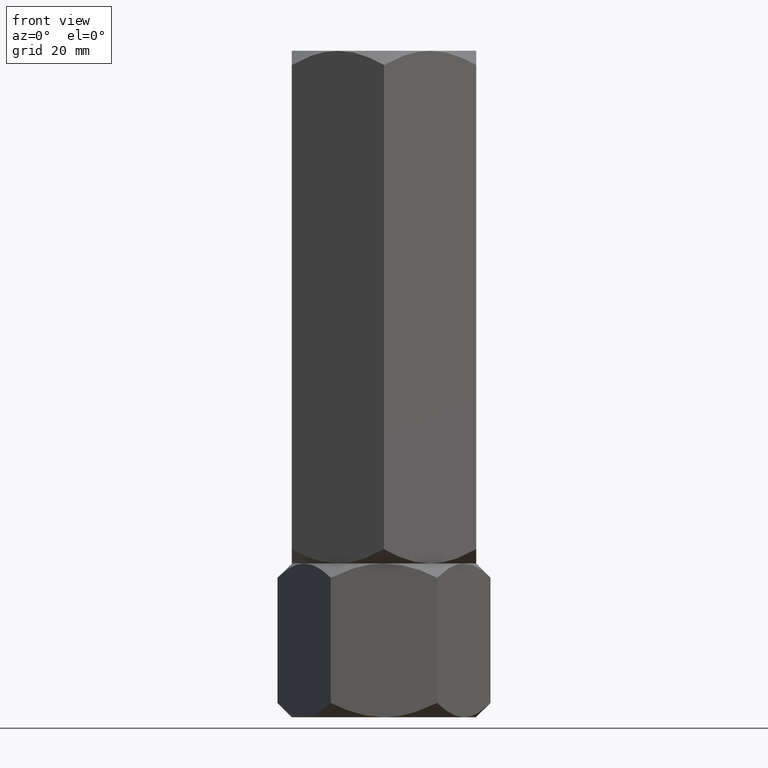
[diagram: clean part render]
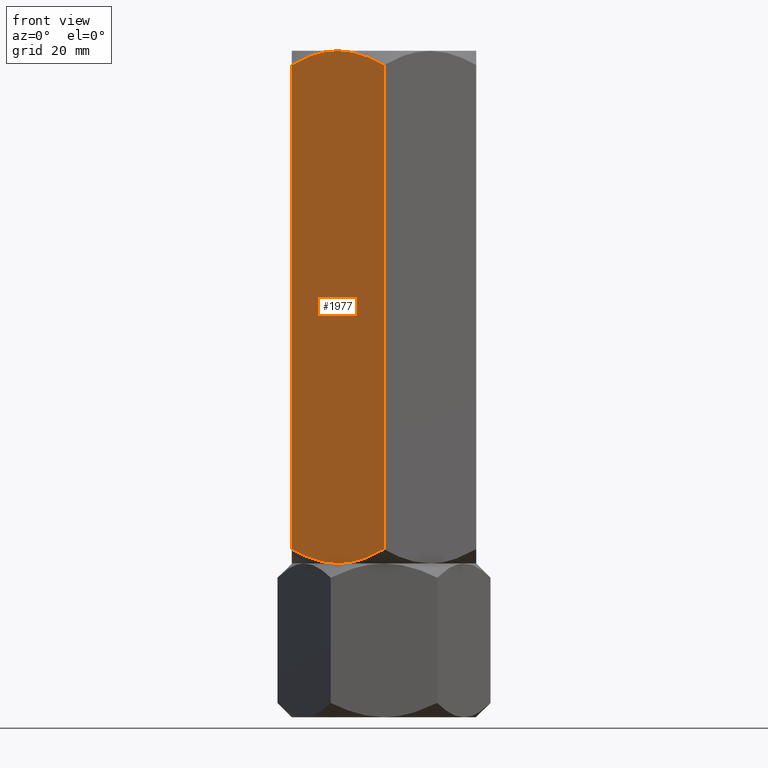
[diagram: same view with one face highlighted and labeled with its STEP entity id]
A machine part, front view. The second image highlights one B-rep face of the part: STEP entity #1977.
In plain terms, the highlighted planar face has unit normal (0.5, 0.866, -0).
Its self-contained STEP definition (entity closure, byte-faithful):
#5 = CARTESIAN_POINT ( 'NONE',  ( -5.858009779716808474, -17.40248616759157585, 30.34056310225525976 ) ) ;
#41 = B_SPLINE_CURVE_WITH_KNOTS ( 'NONE', 3,
 ( #214, #71, #687, #1311, #1894, #501 ),
 .UNSPECIFIED., .F., .F.,
 ( 4, 2, 4 ),
 ( 0.01077282027732747414, 0.01612137750481873813, 0.02146993473231000732 ),
 .UNSPECIFIED. ) ;
#71 = CARTESIAN_POINT ( 'NONE',  ( -10.56546083169954464, -14.68463803553234648, 29.99999999999999645 ) ) ;
#109 = CARTESIAN_POINT ( 'NONE',  ( -16.58866960374795951, -11.20713682960487567, 128.0302222933650569 ) ) ;
#137 = DIRECTION ( 'NONE',  ( -0.8660254037844384856, 0.5000000000000002220, 0.000000000000000000 ) ) ;
#157 = EDGE_CURVE ( 'NONE', #212, #1515, #1385, .T. ) ;
#173 = ORIENTED_EDGE ( 'NONE', *, *, #1681, .F. ) ;
#184 = CARTESIAN_POINT ( 'NONE',  ( -2.998680872865238938E-15, -20.78460969082652809, 130.0000000000000000 ) ) ;
#196 = EDGE_CURVE ( 'NONE', #681, #212, #1887, .T. ) ;
#212 = VERTEX_POINT ( 'NONE', #1379 ) ;
#214 = CARTESIAN_POINT ( 'NONE',  ( -9.000000000000005329, -15.58845726811989429, 30.00000000000000000 ) ) ;
#225 = CARTESIAN_POINT ( 'NONE',  ( -6.297340013485389316E-15, -20.78460969082653165, 127.2153903091734719 ) ) ;
#282 = CARTESIAN_POINT ( 'NONE',  ( -9.790461530629876563, -15.13208409062668736, 129.9826671435259300 ) ) ;
#322 = CARTESIAN_POINT ( 'NONE',  ( -2.854601888853816050, -19.13650452186755757, 31.27738307788985850 ) ) ;
#343 = AXIS2_PLACEMENT_3D ( 'NONE', #1273, #1387, #137 ) ;
#390 = CARTESIAN_POINT ( 'NONE',  ( -7.434539168300463352, -16.49227650070743678, 129.9999999999999716 ) ) ;
#451 = CARTESIAN_POINT ( 'NONE',  ( -10.58425150785354596, -14.67378923359657961, 129.9130531098818437 ) ) ;
#478 = CARTESIAN_POINT ( 'NONE',  ( -8.209538469370132319, -16.04483044561309057, 30.01733285647408422 ) ) ;
#490 = CARTESIAN_POINT ( 'NONE',  ( -1.411330396252050923, -19.96977770663490048, 31.96977770663489338 ) ) ;
#491 = EDGE_CURVE ( 'NONE', #681, #1140, #525, .T. ) ;
#494 = ORIENTED_EDGE ( 'NONE', *, *, #1493, .F. ) ;
#501 = CARTESIAN_POINT ( 'NONE',  ( -18.00000000000000355, -10.39230484541325872, 32.78460969082651388 ) ) ;
#525 = LINE ( 'NONE', #1132, #1402 ) ;
#540 = CARTESIAN_POINT ( 'NONE',  ( -2.860715810337969955, -19.13297464765287614, 128.7274252984957172 ) ) ;
#570 = ORIENTED_EDGE ( 'NONE', *, *, #1673, .F. ) ;
#586 = CARTESIAN_POINT ( 'NONE',  ( -12.14199022028321373, -13.77442836864821452, 129.6594368977447971 ) ) ;
#603 = CARTESIAN_POINT ( 'NONE',  ( -9.000000000000005329, -15.58845726811989429, 30.00000000000000000 ) ) ;
#624 = CARTESIAN_POINT ( 'NONE',  ( -5.097327296964726528, -17.84166640377631197, 30.53708555582899464 ) ) ;
#634 = CARTESIAN_POINT ( 'NONE',  ( -3.379014044959083873E-15, -20.78460969082652809, 32.78460969082651388 ) ) ;
#646 = CARTESIAN_POINT ( 'NONE',  ( -7.415748492146458481, -16.50312530264320188, 30.08694689011813850 ) ) ;
#658 = VERTEX_POINT ( 'NONE', #603 ) ;
#667 = CARTESIAN_POINT ( 'NONE',  ( -3.379014044959083873E-15, -20.78460969082652809, 32.78460969082651388 ) ) ;
#669 = VERTEX_POINT ( 'NONE', #667 ) ;
#681 = VERTEX_POINT ( 'NONE', #2025 ) ;
#687 = CARTESIAN_POINT ( 'NONE',  ( -12.10430252359948433, -13.79618737047369414, 30.27639590712157869 ) ) ;
#732 = CARTESIAN_POINT ( 'NONE',  ( -10.97671975407796019, -14.44719758599053172, 129.8612774009014004 ) ) ;
#742 = CARTESIAN_POINT ( 'NONE',  ( -15.14539811114619283, -12.04041001437221858, 128.7226169221101202 ) ) ;
#750 = CARTESIAN_POINT ( 'NONE',  ( -9.000000000000003553, -15.58845726811989074, 130.0000000000000000 ) ) ;
#832 = DIRECTION ( 'NONE',  ( -0.000000000000000000, -0.000000000000000000, -1.000000000000000000 ) ) ;
#907 = CARTESIAN_POINT ( 'NONE',  ( -9.394125676616237541, -15.36090870263096519, 130.0000000000000284 ) ) ;
#939 = FACE_OUTER_BOUND ( 'NONE', #1095, .T. ) ;
#944 = CARTESIAN_POINT ( 'NONE',  ( -7.023280245922051357, -16.72971695024923733, 30.13872259909856766 ) ) ;
#954 = CARTESIAN_POINT ( 'NONE',  ( -9.000000000000005329, -15.58845726811989429, 30.00000000000000000 ) ) ;
#1025 = CARTESIAN_POINT ( 'NONE',  ( -5.895697476400527215, -17.38072716576608556, 129.7236040928784746 ) ) ;
#1095 = EDGE_LOOP ( 'NONE', ( #1781, #1972, #570, #494, #173, #1335 ) ) ;
#1132 = CARTESIAN_POINT ( 'NONE',  ( -18.00000000000000355, -10.39230484541325872, 130.0000000000000000 ) ) ;
#1140 = VERTEX_POINT ( 'NONE', #1760 ) ;
#1216 = CARTESIAN_POINT ( 'NONE',  ( -18.00000000000000711, -10.39230484541325694, 127.2153903091734719 ) ) ;
#1273 = CARTESIAN_POINT ( 'NONE',  ( -18.00000000000000355, -10.39230484541325872, 130.0000000000000000 ) ) ;
#1311 = CARTESIAN_POINT ( 'NONE',  ( -15.13928418966204070, -12.04393988858689646, 31.27257470150422591 ) ) ;
#1335 = ORIENTED_EDGE ( 'NONE', *, *, #157, .F. ) ;
#1379 = CARTESIAN_POINT ( 'NONE',  ( -9.000000000000003553, -15.58845726811989074, 130.0000000000000000 ) ) ;
#1385 = B_SPLINE_CURVE_WITH_KNOTS ( 'NONE', 3,
 ( #1940, #390, #1025, #540, #1633, #225 ),
 .UNSPECIFIED., .F., .F.,
 ( 4, 2, 4 ),
 ( 0.01077282027732747414, 0.01612137750481874160, 0.02146993473231000732 ),
 .UNSPECIFIED. ) ;
#1387 = DIRECTION ( 'NONE',  ( 0.5000000000000003331, 0.8660254037844385966, -0.000000000000000000 ) ) ;
#1402 = VECTOR ( 'NONE', #1640, 1000.000000000000000 ) ;
#1435 = VECTOR ( 'NONE', #832, 1000.000000000000000 ) ;
#1493 = EDGE_CURVE ( 'NONE', #669, #658, #1618, .T. ) ;
#1515 = VERTEX_POINT ( 'NONE', #1716 ) ;
#1528 = CARTESIAN_POINT ( 'NONE',  ( -12.90267270303528058, -13.33524813246346774, 129.4629144441710196 ) ) ;
#1578 = PLANE ( 'NONE',  #343 ) ;
#1618 = B_SPLINE_CURVE_WITH_KNOTS ( 'NONE', 3,
 ( #634, #490, #322, #624, #5, #944, #646, #478, #1882, #954 ),
 .UNSPECIFIED., .F., .F.,
 ( 4, 2, 2, 2, 4 ),
 ( 2.544307986818388302E-07, 0.005386537354063076002, 0.008079678815695271604, 0.009426249546511372007, 0.01077282027732747414 ),
 .UNSPECIFIED. ) ;
#1633 = CARTESIAN_POINT ( 'NONE',  ( -1.409696000463992682, -19.97072132548310108, 128.0292786745169735 ) ) ;
#1640 = DIRECTION ( 'NONE',  ( -0.000000000000000000, -0.000000000000000000, -1.000000000000000000 ) ) ;
#1673 = EDGE_CURVE ( 'NONE', #658, #1140, #41, .T. ) ;
#1681 = EDGE_CURVE ( 'NONE', #1515, #669, #1943, .T. ) ;
#1716 = CARTESIAN_POINT ( 'NONE',  ( -6.297340013485389316E-15, -20.78460969082653165, 127.2153903091734719 ) ) ;
#1760 = CARTESIAN_POINT ( 'NONE',  ( -18.00000000000000355, -10.39230484541325872, 32.78460969082651388 ) ) ;
#1781 = ORIENTED_EDGE ( 'NONE', *, *, #196, .F. ) ;
#1882 = CARTESIAN_POINT ( 'NONE',  ( -8.605874323383776670, -15.81600583360881807, 30.00000000000000355 ) ) ;
#1887 = B_SPLINE_CURVE_WITH_KNOTS ( 'NONE', 3,
 ( #1216, #109, #742, #1528, #586, #732, #451, #282, #907, #750 ),
 .UNSPECIFIED., .F., .F.,
 ( 4, 2, 2, 2, 4 ),
 ( 2.544307986816325776E-07, 0.005386537354063064727, 0.008079678815695268135, 0.009426249546511372007, 0.01077282027732747414 ),
 .UNSPECIFIED. ) ;
#1894 = CARTESIAN_POINT ( 'NONE',  ( -16.59030399953602242, -11.20619321075668040, 31.97072132548305845 ) ) ;
#1940 = CARTESIAN_POINT ( 'NONE',  ( -9.000000000000003553, -15.58845726811989074, 130.0000000000000000 ) ) ;
#1943 = LINE ( 'NONE', #184, #1435 ) ;
#1972 = ORIENTED_EDGE ( 'NONE', *, *, #491, .T. ) ;
#1977 = ADVANCED_FACE ( 'NONE', ( #939 ), #1578, .F. ) ;
#2025 = CARTESIAN_POINT ( 'NONE',  ( -18.00000000000000711, -10.39230484541325694, 127.2153903091734719 ) ) ;